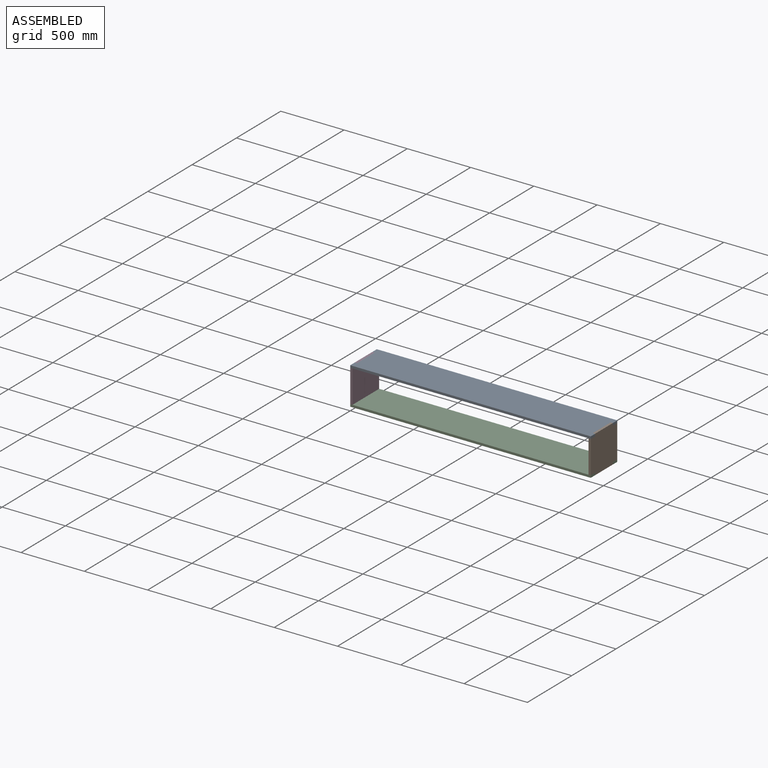
[diagram: assembled view]
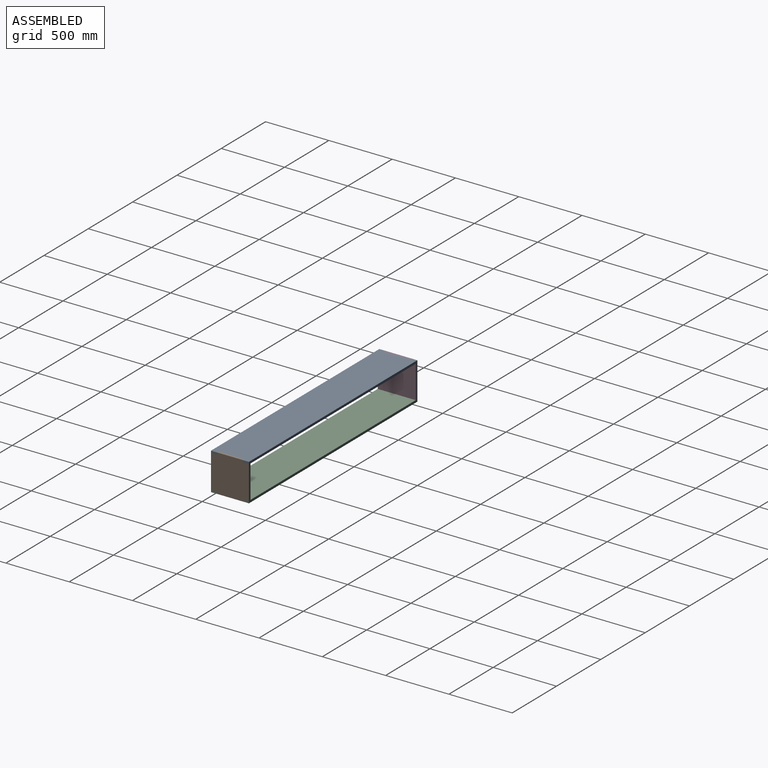
[diagram: assembled view, second angle]
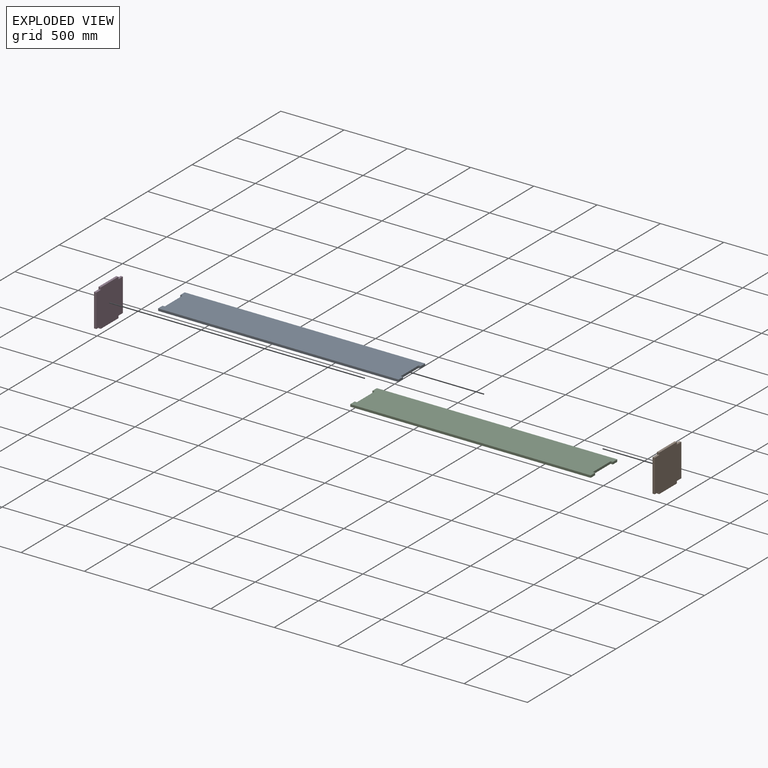
[diagram: exploded view]
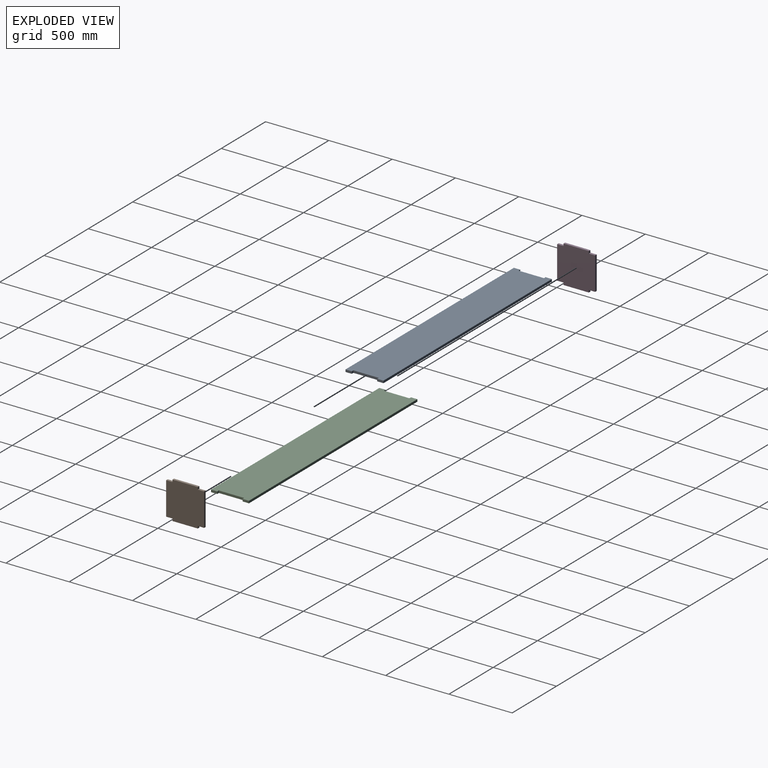
[diagram: exploded view, second angle]
ASSEMBLY  parts=4 mates=3
PART A: 14 faces, bbox 1900x300x18 mm
  f0: plane 1900x18mm, normal (0,1,0), area 34200mm2, adj f1,f11,f12,f13
  f1: plane 50x18mm, normal (-1,0,0), area 900mm2, adj f0,f2,f12,f13
  f2: plane 18x18mm, normal (0,-1,0), area 324mm2, adj f1,f3,f12,f13
  f3: plane 200x18mm, normal (-1,0,0), area 3600mm2, adj f2,f4,f12,f13
  f4: plane 18x18mm, normal (0,1,0), area 324mm2, adj f3,f5,f12,f13
  f5: plane 50x18mm, normal (-1,0,0), area 900mm2, adj f4,f6,f12,f13
  f6: plane 1900x18mm, normal (0,-1,0), area 34200mm2, adj f5,f7,f12,f13
  f7: plane 50x18mm, normal (1,0,0), area 900mm2, adj f6,f8,f12,f13
  f8: plane 18x18mm, normal (0,1,0), area 324mm2, adj f7,f9,f12,f13
  f9: plane 200x18mm, normal (1,0,0), area 3600mm2, adj f8,f10,f12,f13
  f10: plane 18x18mm, normal (0,-1,0), area 324mm2, adj f9,f11,f12,f13
  f11: plane 50x18mm, normal (1,0,0), area 900mm2, adj f0,f10,f12,f13
  f12: plane 1900x300mm, normal (0,0,1), area 562800mm2, adj f0,f1,f2,f3,f4,f5,f6,f7
  f13: plane 1900x300mm, normal (0,0,-1), area 562800mm2, adj f0,f1,f2,f3,f4,f5,f6,f7
PART B: 14 faces, bbox 18x300x296 mm
  f0: plane 18x18mm, normal (0,1,0), area 324mm2, adj f1,f11,f12,f13
  f1: plane 200x18mm, normal (0,0,1), area 3600mm2, adj f0,f2,f12,f13
  f2: plane 18x18mm, normal (0,-1,0), area 324mm2, adj f1,f3,f12,f13
  f3: plane 50x18mm, normal (0,0,1), area 900mm2, adj f2,f4,f12,f13
  f4: plane 260x18mm, normal (0,-1,0), area 4680mm2, adj f3,f5,f12,f13
  f5: plane 50x18mm, normal (0,0,-1), area 900mm2, adj f4,f6,f12,f13
  f6: plane 18x18mm, normal (0,-1,0), area 324mm2, adj f5,f7,f12,f13
  f7: plane 200x18mm, normal (0,0,-1), area 3600mm2, adj f6,f8,f12,f13
  f8: plane 18x18mm, normal (0,1,0), area 324mm2, adj f7,f9,f12,f13
  f9: plane 50x18mm, normal (0,0,-1), area 900mm2, adj f8,f10,f12,f13
  f10: plane 260x18mm, normal (0,1,0), area 4680mm2, adj f9,f11,f12,f13
  f11: plane 50x18mm, normal (0,0,1), area 900mm2, adj f0,f10,f12,f13
  f12: plane 300x296mm, normal (1,0,0), area 85200mm2, adj f0,f1,f2,f3,f4,f5,f6,f7
  f13: plane 300x296mm, normal (-1,0,0), area 85200mm2, adj f0,f1,f2,f3,f4,f5,f6,f7
PART C: same geometry as A
PART D: same geometry as B
PLACE A t=(0,0,278)mm
PLACE B t=(1882,335.18,4.79)mm
PLACE C at identity fixed
PLACE D t=(0,335.18,4.79)mm
MATE fastened C.f5 <-> D.f13  axis (-1,0,0) through (0,50,18)mm
MATE fastened D.f13 <-> A.f5  axis (-1,0,0) through (0,50,278)mm
MATE fastened B.f12 <-> A.f11  axis (1,0,0) through (1900,250,296)mm
